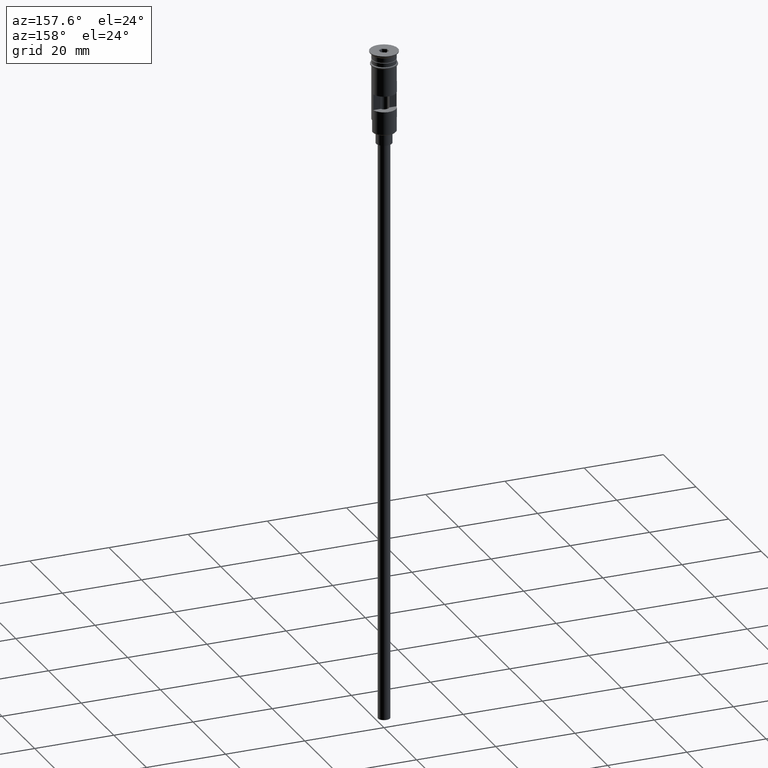
[diagram: clean part render]
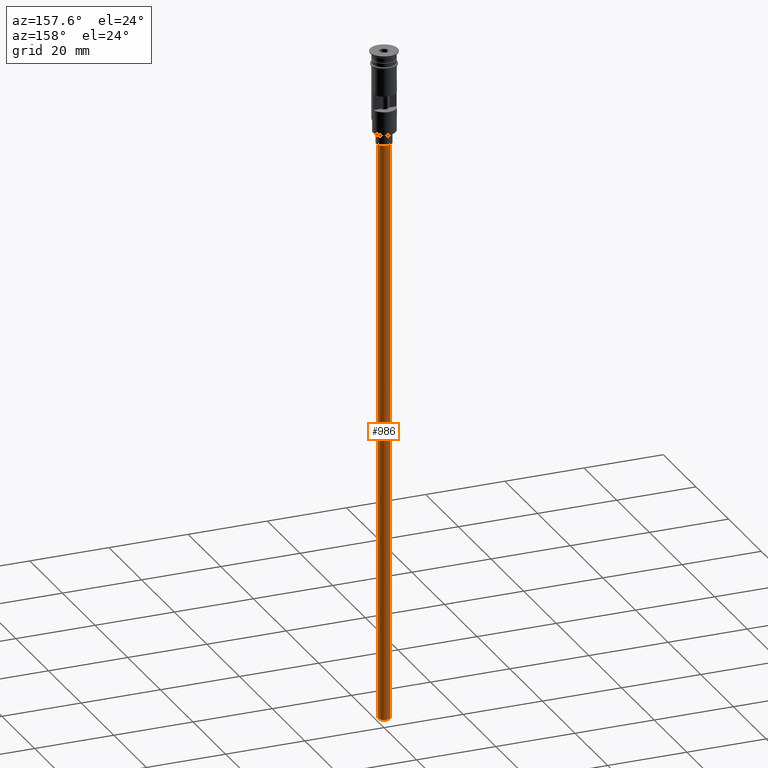
[diagram: same view with one face highlighted and labeled with its STEP entity id]
A machine part, auxiliary view. The second image highlights one B-rep face of the part: STEP entity #986.
In plain terms, the highlighted cylindrical surface (edge-blend (fillet) strip) has radius 1.5 mm, axis along (-0, -0, 1).
Its self-contained STEP definition (entity closure, byte-faithful):
#4 = DIRECTION ( 'NONE',  ( -1.000000000000000000, 0.000000000000000000, 0.000000000000000000 ) ) ;
#40 = CYLINDRICAL_SURFACE ( 'NONE', #1287, 1.500000000000000222 ) ;
#45 = CARTESIAN_POINT ( 'NONE',  ( -1.500000000000000222, 1.836970198721030181E-16, -170.4999999999999716 ) ) ;
#58 = DIRECTION ( 'NONE',  ( -1.000000000000000000, 0.000000000000000000, 0.000000000000000000 ) ) ;
#69 = CARTESIAN_POINT ( 'NONE',  ( 0.000000000000000000, 0.000000000000000000, -170.4999999999999716 ) ) ;
#101 = EDGE_CURVE ( 'NONE', #768, #487, #1004, .T. ) ;
#119 = DIRECTION ( 'NONE',  ( 0.000000000000000000, 0.000000000000000000, -1.000000000000000000 ) ) ;
#149 = VERTEX_POINT ( 'NONE', #45 ) ;
#212 = EDGE_CURVE ( 'NONE', #862, #487, #1120, .T. ) ;
#225 = DIRECTION ( 'NONE',  ( 1.000000000000000000, 0.000000000000000000, 0.000000000000000000 ) ) ;
#239 = EDGE_CURVE ( 'NONE', #149, #768, #1349, .T. ) ;
#240 = CARTESIAN_POINT ( 'NONE',  ( -1.500000000000000222, 1.836970198721030181E-16, -170.4999999999999716 ) ) ;
#326 = CARTESIAN_POINT ( 'NONE',  ( 1.500000000000000222, 0.000000000000000000, -170.4999999999999716 ) ) ;
#438 = AXIS2_PLACEMENT_3D ( 'NONE', #528, #119, #4 ) ;
#487 = VERTEX_POINT ( 'NONE', #496 ) ;
#495 = CARTESIAN_POINT ( 'NONE',  ( 1.500000000000000222, 0.000000000000000000, -170.4999999999999716 ) ) ;
#496 = CARTESIAN_POINT ( 'NONE',  ( 1.500000000000000222, 0.000000000000000000, -23.50000000000000000 ) ) ;
#528 = CARTESIAN_POINT ( 'NONE',  ( 0.000000000000000000, 0.000000000000000000, -23.50000000000000000 ) ) ;
#608 = DIRECTION ( 'NONE',  ( -0.000000000000000000, -0.000000000000000000, 1.000000000000000000 ) ) ;
#639 = AXIS2_PLACEMENT_3D ( 'NONE', #69, #1548, #58 ) ;
#768 = VERTEX_POINT ( 'NONE', #1136 ) ;
#862 = VERTEX_POINT ( 'NONE', #326 ) ;
#972 = FACE_OUTER_BOUND ( 'NONE', #1305, .T. ) ;
#981 = VECTOR ( 'NONE', #608, 1000.000000000000000 ) ;
#986 = ADVANCED_FACE ( 'NONE', ( #972 ), #40, .T. ) ;
#1004 = CIRCLE ( 'NONE', #438, 1.500000000000000222 ) ;
#1007 = ORIENTED_EDGE ( 'NONE', *, *, #239, .T. ) ;
#1081 = ORIENTED_EDGE ( 'NONE', *, *, #212, .F. ) ;
#1084 = EDGE_CURVE ( 'NONE', #149, #862, #1207, .T. ) ;
#1120 = LINE ( 'NONE', #495, #1184 ) ;
#1136 = CARTESIAN_POINT ( 'NONE',  ( -1.500000000000000222, 1.836970198721030181E-16, -23.50000000000000000 ) ) ;
#1184 = VECTOR ( 'NONE', #1340, 1000.000000000000000 ) ;
#1207 = CIRCLE ( 'NONE', #639, 1.500000000000000222 ) ;
#1209 = CARTESIAN_POINT ( 'NONE',  ( 0.000000000000000000, 0.000000000000000000, -170.4999999999999716 ) ) ;
#1213 = ORIENTED_EDGE ( 'NONE', *, *, #101, .T. ) ;
#1287 = AXIS2_PLACEMENT_3D ( 'NONE', #1209, #1515, #225 ) ;
#1305 = EDGE_LOOP ( 'NONE', ( #1520, #1007, #1213, #1081 ) ) ;
#1340 = DIRECTION ( 'NONE',  ( -0.000000000000000000, -0.000000000000000000, 1.000000000000000000 ) ) ;
#1349 = LINE ( 'NONE', #240, #981 ) ;
#1515 = DIRECTION ( 'NONE',  ( -0.000000000000000000, -0.000000000000000000, 1.000000000000000000 ) ) ;
#1520 = ORIENTED_EDGE ( 'NONE', *, *, #1084, .F. ) ;
#1548 = DIRECTION ( 'NONE',  ( 0.000000000000000000, 0.000000000000000000, -1.000000000000000000 ) ) ;